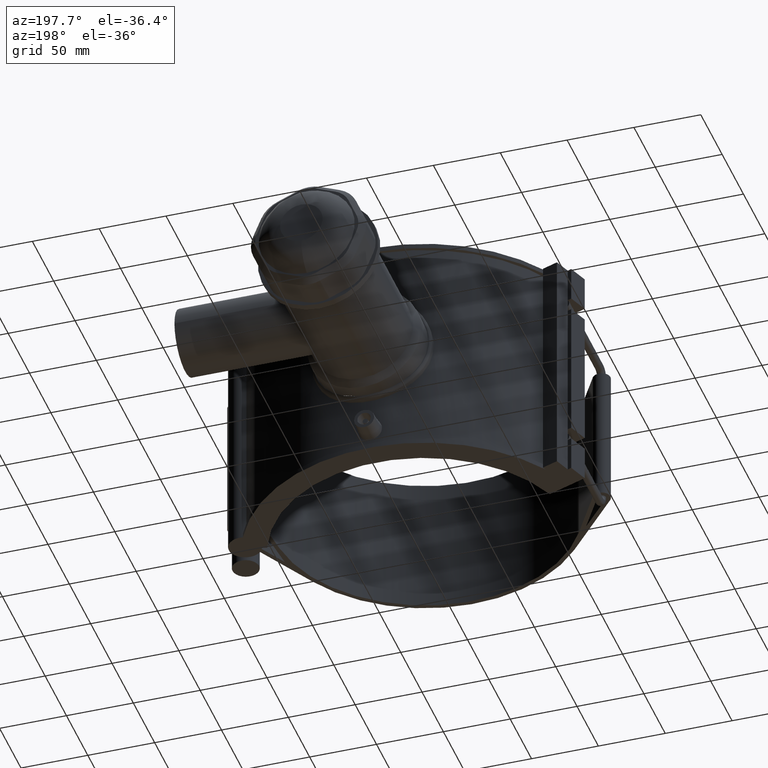
[diagram: clean part render]
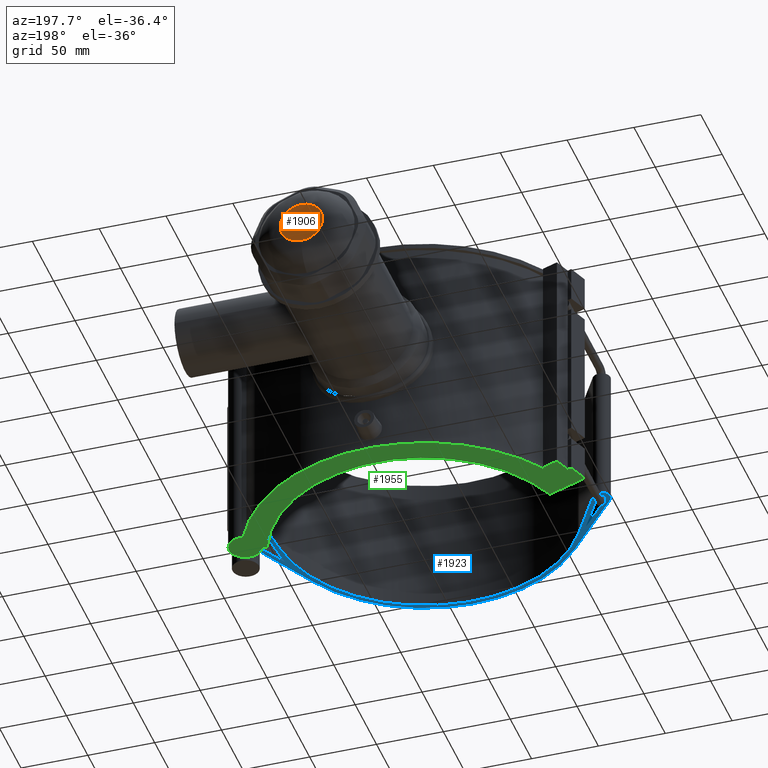
[diagram: same view with three faces highlighted in distinct colors, each labeled with its STEP entity id]
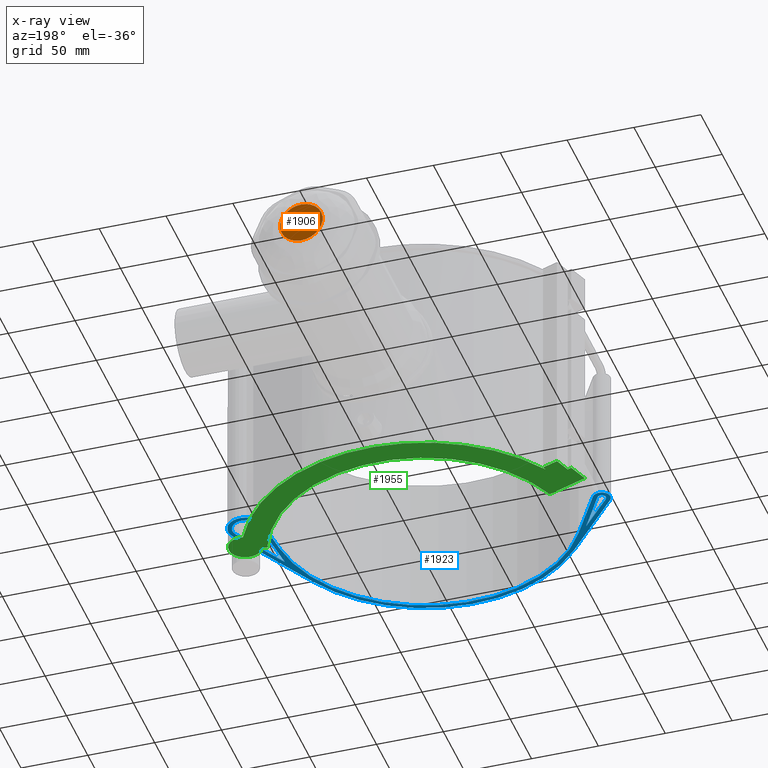
[diagram: x-ray of the same camera — body ghosted, the three highlighted faces saturated]
A machine part, auxiliary view with three faces highlighted in distinct colors.
The next image is the same camera in x-ray (body ghosted, the three faces saturated) — at least one of them is partly hidden behind the body in this view.
Their STEP definitions:

[orange] entity #1906 — the highlighted planar face has unit normal (0, 1, 0).
#485=FACE_OUTER_BOUND('',#614,.T.);
#614=EDGE_LOOP('',(#1397));
#759=CIRCLE('',#2054,15.8993059821309);
#870=VERTEX_POINT('',#3245);
#1072=EDGE_CURVE('',#870,#870,#759,.T.);
#1397=ORIENTED_EDGE('',*,*,#1072,.F.);
#1820=PLANE('',#2055);
#1906=ADVANCED_FACE('',(#485),#1820,.T.);
#2054=AXIS2_PLACEMENT_3D('',#3246,#2371,#2372);
#2055=AXIS2_PLACEMENT_3D('',#3250,#2373,#2374);
#2371=DIRECTION('center_axis',(0.,-1.,-3.06161699786838E-16));
#2372=DIRECTION('ref_axis',(-6.12323399573677E-17,-2.79313581579707E-16,
1.));
#2373=DIRECTION('center_axis',(0.,1.,3.06161699786838E-16));
#2374=DIRECTION('ref_axis',(0.,0.,1.));
#3245=CARTESIAN_POINT('',(2.92065512695214E-15,289.5,-15.8993059821308));
#3246=CARTESIAN_POINT('Origin',(0.,289.5,5.41906208622704E-14));
#3250=CARTESIAN_POINT('Origin',(0.,289.5,5.41906208622704E-14));

[blue] entity #1923 — the highlighted planar face has unit normal (0, 0, 1).
#95=LINE('',#3330,#256);
#99=LINE('',#3338,#260);
#102=LINE('',#3349,#263);
#103=LINE('',#3353,#264);
#104=LINE('',#3357,#265);
#105=LINE('',#3361,#266);
#106=LINE('',#3367,#267);
#107=LINE('',#3368,#268);
#256=VECTOR('',#2430,47.6277081162415);
#260=VECTOR('',#2436,47.6277081162415);
#263=VECTOR('',#2445,78.5940764062651);
#264=VECTOR('',#2448,64.8408064183196);
#265=VECTOR('',#2451,44.6632069155137);
#266=VECTOR('',#2454,21.0798548940247);
#267=VECTOR('',#2459,35.6524694575272);
#268=VECTOR('',#2460,35.6524694575272);
#374=FACE_BOUND('',#637,.T.);
#375=FACE_BOUND('',#638,.T.);
#502=FACE_OUTER_BOUND('',#636,.T.);
#636=EDGE_LOOP('',(#1467,#1468,#1469,#1470,#1471,#1472,#1473,#1474,#1475,
#1476));
#637=EDGE_LOOP('',(#1477,#1478,#1479));
#638=EDGE_LOOP('',(#1480,#1481,#1482));
#767=CIRCLE('',#2080,13.3269230769231);
#768=CIRCLE('',#2081,13.3269230769231);
#769=CIRCLE('',#2082,115.875);
#770=CIRCLE('',#2083,6.525);
#771=CIRCLE('',#2084,112.5);
#772=CIRCLE('',#2085,112.5);
#773=CIRCLE('',#2086,3.15000000000001);
#774=CIRCLE('',#2087,9.95192307692308);
#882=VERTEX_POINT('',#3328);
#883=VERTEX_POINT('',#3329);
#886=VERTEX_POINT('',#3337);
#888=VERTEX_POINT('',#3343);
#889=VERTEX_POINT('',#3344);
#890=VERTEX_POINT('',#3346);
#891=VERTEX_POINT('',#3348);
#892=VERTEX_POINT('',#3350);
#893=VERTEX_POINT('',#3352);
#894=VERTEX_POINT('',#3354);
#895=VERTEX_POINT('',#3356);
#896=VERTEX_POINT('',#3358);
#897=VERTEX_POINT('',#3360);
#898=VERTEX_POINT('',#3363);
#899=VERTEX_POINT('',#3364);
#900=VERTEX_POINT('',#3366);
#1095=EDGE_CURVE('',#882,#883,#95,.T.);
#1099=EDGE_CURVE('',#883,#886,#99,.T.);
#1102=EDGE_CURVE('',#888,#889,#767,.T.);
#1103=EDGE_CURVE('',#889,#890,#768,.T.);
#1104=EDGE_CURVE('',#890,#891,#102,.T.);
#1105=EDGE_CURVE('',#891,#892,#769,.T.);
#1106=EDGE_CURVE('',#892,#893,#103,.T.);
#1107=EDGE_CURVE('',#893,#894,#770,.T.);
#1108=EDGE_CURVE('',#894,#895,#104,.T.);
#1109=EDGE_CURVE('',#895,#896,#771,.T.);
#1110=EDGE_CURVE('',#896,#897,#105,.T.);
#1111=EDGE_CURVE('',#888,#897,#772,.T.);
#1112=EDGE_CURVE('',#898,#899,#773,.T.);
#1113=EDGE_CURVE('',#899,#900,#106,.T.);
#1114=EDGE_CURVE('',#900,#898,#107,.T.);
#1115=EDGE_CURVE('',#882,#886,#774,.T.);
#1467=ORIENTED_EDGE('',*,*,#1102,.T.);
#1468=ORIENTED_EDGE('',*,*,#1103,.T.);
#1469=ORIENTED_EDGE('',*,*,#1104,.T.);
#1470=ORIENTED_EDGE('',*,*,#1105,.T.);
#1471=ORIENTED_EDGE('',*,*,#1106,.T.);
#1472=ORIENTED_EDGE('',*,*,#1107,.T.);
#1473=ORIENTED_EDGE('',*,*,#1108,.T.);
#1474=ORIENTED_EDGE('',*,*,#1109,.T.);
#1475=ORIENTED_EDGE('',*,*,#1110,.T.);
#1476=ORIENTED_EDGE('',*,*,#1111,.F.);
#1477=ORIENTED_EDGE('',*,*,#1112,.T.);
#1478=ORIENTED_EDGE('',*,*,#1113,.T.);
#1479=ORIENTED_EDGE('',*,*,#1114,.T.);
#1480=ORIENTED_EDGE('',*,*,#1095,.T.);
#1481=ORIENTED_EDGE('',*,*,#1099,.T.);
#1482=ORIENTED_EDGE('',*,*,#1115,.F.);
#1829=PLANE('',#2079);
#1923=ADVANCED_FACE('',(#502,#374,#375),#1829,.F.);
#2079=AXIS2_PLACEMENT_3D('',#3342,#2439,#2440);
#2080=AXIS2_PLACEMENT_3D('',#3345,#2441,#2442);
#2081=AXIS2_PLACEMENT_3D('',#3347,#2443,#2444);
#2082=AXIS2_PLACEMENT_3D('',#3351,#2446,#2447);
#2083=AXIS2_PLACEMENT_3D('',#3355,#2449,#2450);
#2084=AXIS2_PLACEMENT_3D('',#3359,#2452,#2453);
#2085=AXIS2_PLACEMENT_3D('',#3362,#2455,#2456);
#2086=AXIS2_PLACEMENT_3D('',#3365,#2457,#2458);
#2087=AXIS2_PLACEMENT_3D('',#3369,#2461,#2462);
#2430=DIRECTION('',(-0.0905873526607488,-0.995888513608786,0.));
#2436=DIRECTION('',(0.481783564841131,0.876290246806942,0.));
#2439=DIRECTION('center_axis',(0.,0.,1.));
#2440=DIRECTION('ref_axis',(1.,0.,0.));
#2441=DIRECTION('center_axis',(0.,0.,-1.));
#2442=DIRECTION('ref_axis',(0.333937766224141,-0.942595124265573,0.));
#2443=DIRECTION('center_axis',(0.,0.,-1.));
#2444=DIRECTION('ref_axis',(0.333937766224141,-0.942595124265573,0.));
#2445=DIRECTION('',(-0.481783564841132,-0.876290246806942,0.));
#2446=DIRECTION('center_axis',(0.,0.,-1.));
#2447=DIRECTION('ref_axis',(0.98858601250743,0.150657545030643,0.));
#2448=DIRECTION('',(-0.654222560450905,0.756302083427688,0.));
#2449=DIRECTION('center_axis',(0.,0.,-1.));
#2450=DIRECTION('ref_axis',(-1.,0.,0.));
#2451=DIRECTION('',(0.511479804338622,-0.859295298342616,0.));
#2452=DIRECTION('center_axis',(0.,0.,1.));
#2453=DIRECTION('ref_axis',(0.859295298342616,0.511479804338621,0.));
#2454=DIRECTION('',(0.0905873526607496,0.995888513608786,0.));
#2455=DIRECTION('center_axis',(0.,0.,-1.));
#2456=DIRECTION('ref_axis',(0.998677892414806,-0.0514049336340487,0.));
#2457=DIRECTION('center_axis',(0.,0.,1.));
#2458=DIRECTION('ref_axis',(0.,-1.,0.));
#2459=DIRECTION('',(0.654222560450905,-0.756302083427689,0.));
#2460=DIRECTION('',(-0.511479804338621,0.859295298342616,0.));
#2461=DIRECTION('center_axis',(0.,0.,-1.));
#2462=DIRECTION('ref_axis',(1.,0.,0.));
#3328=CARTESIAN_POINT('',(117.816208062281,20.3667629094291,-52.8));
#3329=CARTESIAN_POINT('',(113.501740070732,-27.0651245330477,-52.8));
#3330=CARTESIAN_POINT('',(111.296901210728,-51.3044209750099,-52.8));
#3337=CARTESIAN_POINT('',(136.447987072188,14.6705715669825,-52.8));
#3338=CARTESIAN_POINT('',(104.727436402926,-43.0242341576286,-52.8));
#3342=CARTESIAN_POINT('Origin',(10.9856604197406,-66.6198277359929,-52.8));
#3343=CARTESIAN_POINT('',(114.401273477424,19.6270759644184,-52.8));
#3344=CARTESIAN_POINT('',(123.949690676323,32.2455886969886,-52.8));
#3345=CARTESIAN_POINT('Origin',(127.727213942907,19.4652445440072,-52.8));
#3346=CARTESIAN_POINT('',(139.405466655161,13.0445520356437,-52.8));
#3347=CARTESIAN_POINT('Origin',(127.727213942907,19.4652445440072,-52.8));
#3348=CARTESIAN_POINT('',(101.540132348754,-55.826670575966,-52.8));
#3349=CARTESIAN_POINT('',(101.540132348754,-55.826670575966,-52.8));
#3350=CARTESIAN_POINT('',(-87.6365039171833,-75.8080391922487,-52.8));
#3351=CARTESIAN_POINT('Origin',(0.,0.,-52.8));
#3352=CARTESIAN_POINT('',(-130.056822313878,-26.7688022069422,-52.8));
#3353=CARTESIAN_POINT('',(-130.056822313878,-26.7688022069422,-52.8));
#3354=CARTESIAN_POINT('',(-119.515049397827,-19.1625942766905,-52.8));
#3355=CARTESIAN_POINT('Origin',(-125.121951219512,-22.5,-52.8));
#3356=CARTESIAN_POINT('',(-96.6707210635443,-57.5414779880949,-52.8));
#3357=CARTESIAN_POINT('',(-96.6707210635443,-57.5414779880949,-52.8));
#3358=CARTESIAN_POINT('',(112.037457780988,-10.1910771743344,-52.8));
#3359=CARTESIAN_POINT('Origin',(0.,0.,-52.8));
#3360=CARTESIAN_POINT('',(113.947026030311,10.8021081831647,-52.8));
#3361=CARTESIAN_POINT('',(114.552404199298,17.4574430304258,-52.8));
#3362=CARTESIAN_POINT('Origin',(1.90956824932243,20.9931853574991,-52.8));
#3363=CARTESIAN_POINT('',(-122.415171029733,-20.8888386163333,-52.8));
#3364=CARTESIAN_POINT('',(-127.504302782309,-24.5608010654204,-52.8));
#3365=CARTESIAN_POINT('Origin',(-125.121951219512,-22.5,-52.8));
#3366=CARTESIAN_POINT('',(-104.179652927408,-51.5248379954902,-52.8));
#3367=CARTESIAN_POINT('',(-87.4617644645724,-70.8512486687023,-52.8));
#3368=CARTESIAN_POINT('',(-85.7981465369504,-82.4061003323276,-52.8));
#3369=CARTESIAN_POINT('Origin',(127.727213942907,19.4652445440072,-52.8));

[green] entity #1955 — the highlighted planar face has unit normal (0, 0, 1).
#137=LINE('',#3486,#298);
#153=LINE('',#3529,#314);
#157=LINE('',#3535,#318);
#168=LINE('',#3558,#329);
#177=LINE('',#3575,#338);
#179=LINE('',#3578,#340);
#181=LINE('',#3593,#342);
#298=VECTOR('',#2558,31.4999999999999);
#314=VECTOR('',#2602,3.15000000000004);
#318=VECTOR('',#2610,15.75);
#329=VECTOR('',#2627,2.57206903182394);
#338=VECTOR('',#2642,12.6);
#340=VECTOR('',#2646,12.6);
#342=VECTOR('',#2662,3.63461538461539);
#534=FACE_OUTER_BOUND('',#676,.T.);
#676=EDGE_LOOP('',(#1661,#1662,#1663,#1664,#1665,#1666,#1667,#1668,#1669,
#1670));
#796=CIRCLE('',#2149,130.815);
#797=CIRCLE('',#2150,12.1153846153846);
#798=CIRCLE('',#2151,112.5);
#941=VERTEX_POINT('',#3483);
#942=VERTEX_POINT('',#3485);
#954=VERTEX_POINT('',#3526);
#955=VERTEX_POINT('',#3528);
#963=VERTEX_POINT('',#3555);
#964=VERTEX_POINT('',#3557);
#969=VERTEX_POINT('',#3573);
#973=VERTEX_POINT('',#3588);
#974=VERTEX_POINT('',#3590);
#975=VERTEX_POINT('',#3592);
#1167=EDGE_CURVE('',#942,#941,#137,.T.);
#1189=EDGE_CURVE('',#955,#954,#153,.T.);
#1193=EDGE_CURVE('',#941,#955,#157,.T.);
#1204=EDGE_CURVE('',#964,#963,#168,.T.);
#1213=EDGE_CURVE('',#954,#969,#177,.T.);
#1215=EDGE_CURVE('',#969,#964,#179,.T.);
#1220=EDGE_CURVE('',#973,#963,#796,.T.);
#1221=EDGE_CURVE('',#973,#974,#797,.T.);
#1222=EDGE_CURVE('',#974,#975,#181,.T.);
#1223=EDGE_CURVE('',#975,#942,#798,.T.);
#1661=ORIENTED_EDGE('',*,*,#1167,.T.);
#1662=ORIENTED_EDGE('',*,*,#1193,.T.);
#1663=ORIENTED_EDGE('',*,*,#1189,.T.);
#1664=ORIENTED_EDGE('',*,*,#1213,.T.);
#1665=ORIENTED_EDGE('',*,*,#1215,.T.);
#1666=ORIENTED_EDGE('',*,*,#1204,.T.);
#1667=ORIENTED_EDGE('',*,*,#1220,.F.);
#1668=ORIENTED_EDGE('',*,*,#1221,.T.);
#1669=ORIENTED_EDGE('',*,*,#1222,.T.);
#1670=ORIENTED_EDGE('',*,*,#1223,.T.);
#1855=PLANE('',#2148);
#1955=ADVANCED_FACE('',(#534),#1855,.F.);
#2148=AXIS2_PLACEMENT_3D('',#3587,#2656,#2657);
#2149=AXIS2_PLACEMENT_3D('',#3589,#2658,#2659);
#2150=AXIS2_PLACEMENT_3D('',#3591,#2660,#2661);
#2151=AXIS2_PLACEMENT_3D('',#3594,#2663,#2664);
#2558=DIRECTION('',(-0.939692620785908,0.342020143325669,0.));
#2602=DIRECTION('',(0.939692620785908,-0.342020143325669,0.));
#2610=DIRECTION('',(0.342020143325668,0.939692620785909,0.));
#2627=DIRECTION('',(-0.342020143325672,-0.939692620785907,0.));
#2642=DIRECTION('',(0.342020143325669,0.939692620785908,0.));
#2646=DIRECTION('',(0.939692620785909,-0.342020143325668,0.));
#2656=DIRECTION('center_axis',(0.,0.,1.));
#2657=DIRECTION('ref_axis',(1.,0.,0.));
#2658=DIRECTION('center_axis',(0.,0.,1.));
#2659=DIRECTION('ref_axis',(0.976614427290077,0.21499828001376,0.));
#2660=DIRECTION('center_axis',(0.,0.,-1.));
#2661=DIRECTION('ref_axis',(-1.,0.,0.));
#2662=DIRECTION('',(-0.939692620785908,-0.342020143325669,0.));
#2663=DIRECTION('center_axis',(0.,0.,1.));
#2664=DIRECTION('ref_axis',(-1.,0.,0.));
#3483=CARTESIAN_POINT('',(-135.315737393171,49.2509006388962,-88.));
#3485=CARTESIAN_POINT('',(-105.715419838415,38.4772661241378,-88.));
#3486=CARTESIAN_POINT('',(-122.402768893554,44.5509644690188,-88.));
#3526=CARTESIAN_POINT('',(-126.968888380316,62.9736959647984,-88.));
#3528=CARTESIAN_POINT('',(-129.928920135791,64.0510594162743,-88.));
#3529=CARTESIAN_POINT('',(-129.928920135791,64.0510594162743,-88.));
#3535=CARTESIAN_POINT('',(-135.315737393171,49.2509006388962,-88.));
#3555=CARTESIAN_POINT('',(-111.699006971418,68.0874148914405,-88.));
#3557=CARTESIAN_POINT('',(-110.81930755251,70.5043691807975,-88.));
#3558=CARTESIAN_POINT('',(-110.81930755251,70.5043691807975,-88.));
#3573=CARTESIAN_POINT('',(-122.659434574412,74.8138229867009,-88.));
#3575=CARTESIAN_POINT('',(-126.968888380316,62.9736959647984,-88.));
#3578=CARTESIAN_POINT('',(-122.659434574412,74.8138229867009,-88.));
#3587=CARTESIAN_POINT('Origin',(-138.02557242982,1.02542712232171E-16,-88.));
#3588=CARTESIAN_POINT('',(118.326455748415,55.7800510489045,-88.));
#3589=CARTESIAN_POINT('Origin',(0.,0.,-88.));
#3590=CARTESIAN_POINT('',(109.130841094733,39.7203777989176,-88.));
#3591=CARTESIAN_POINT('Origin',(120.515578615793,43.864083381517,-88.));
#3592=CARTESIAN_POINT('',(105.715419838415,38.4772661241377,-88.));
#3593=CARTESIAN_POINT('',(-60.9398237995001,-22.1802819444451,-88.));
#3594=CARTESIAN_POINT('Origin',(0.,0.,-88.));